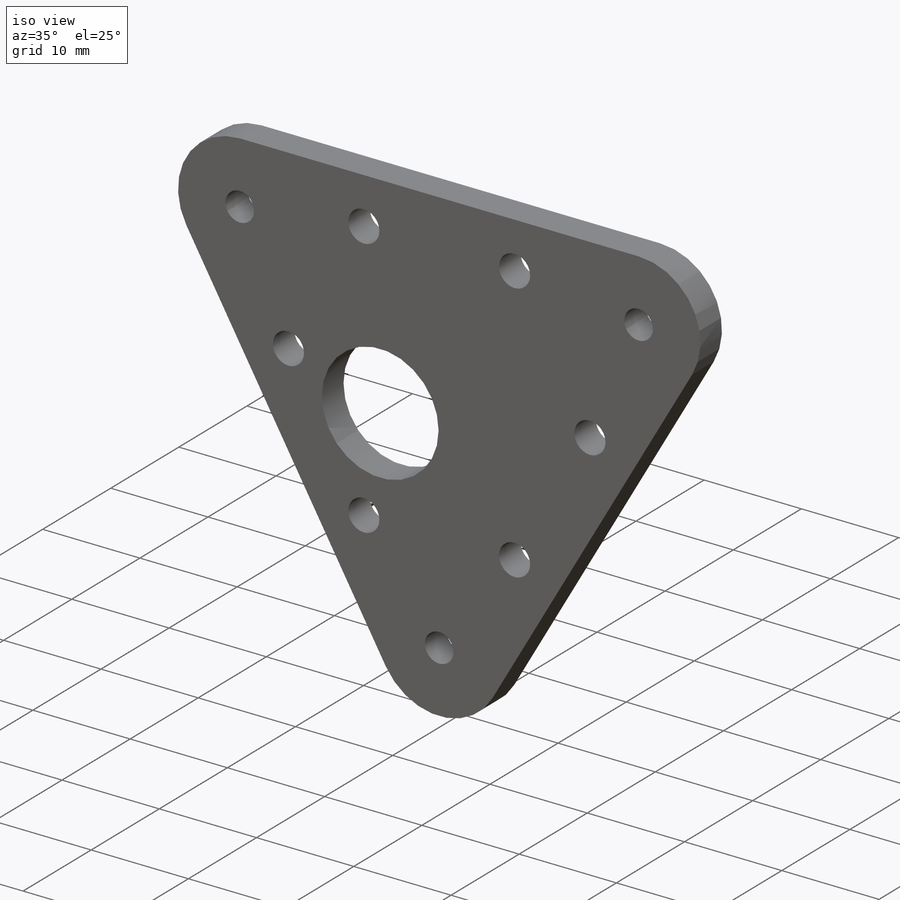
[diagram: iso view]
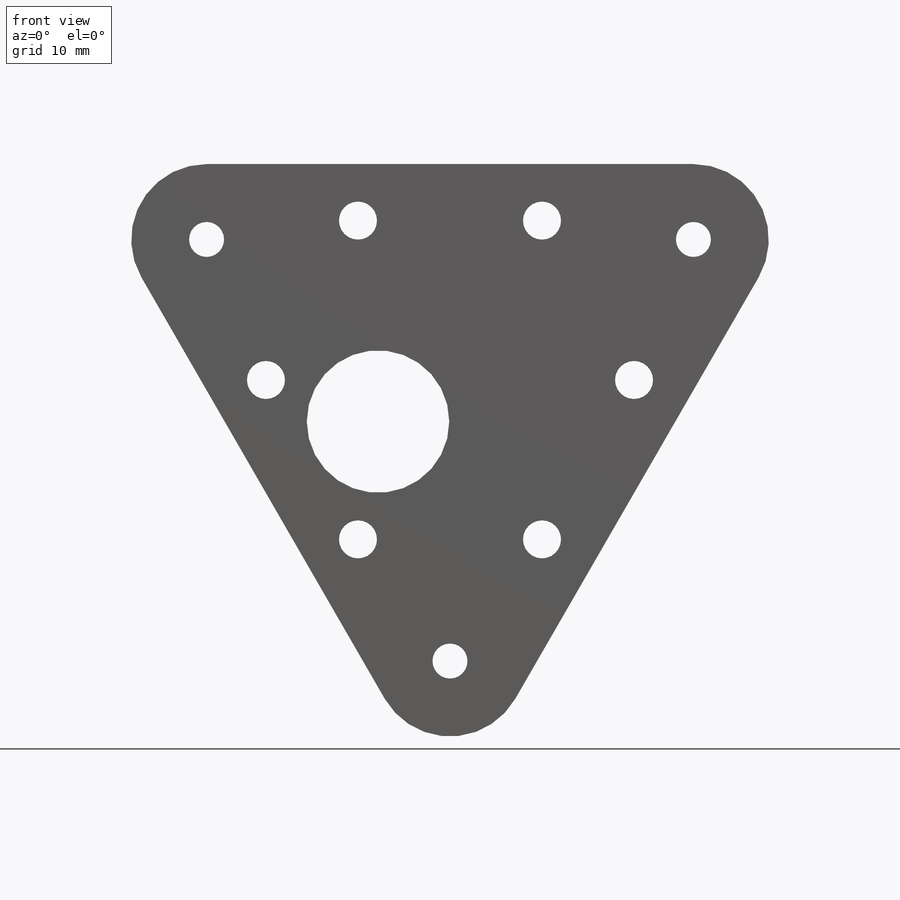
[diagram: front view]
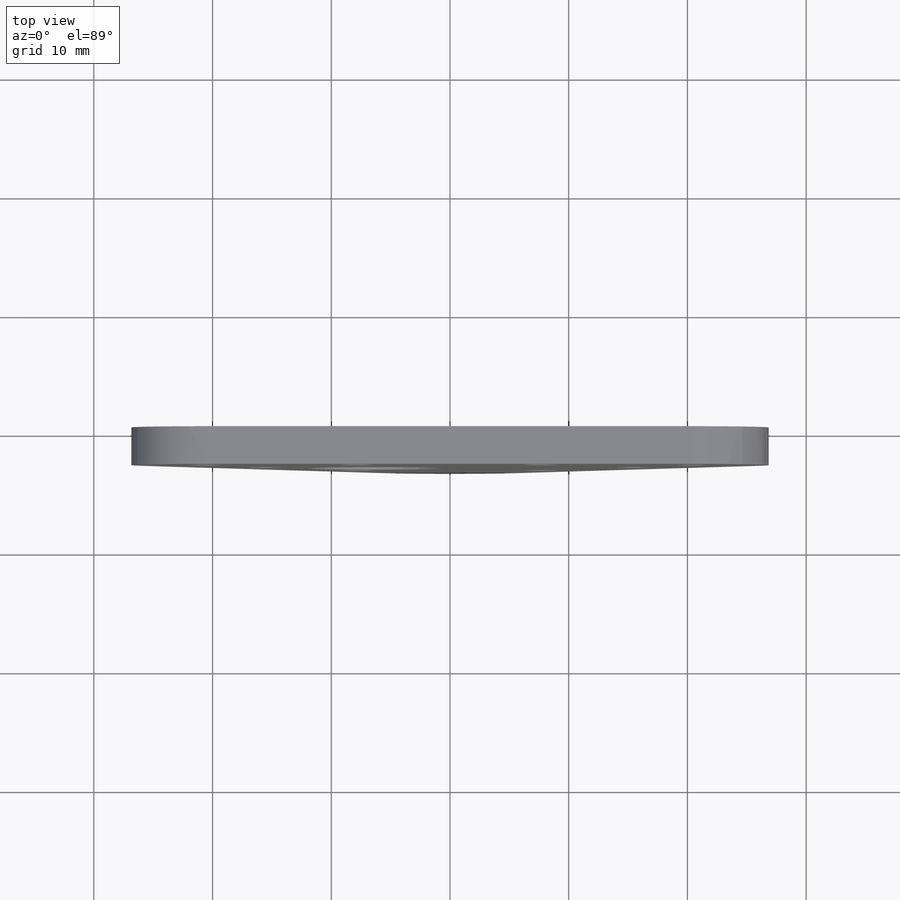
[diagram: top view]
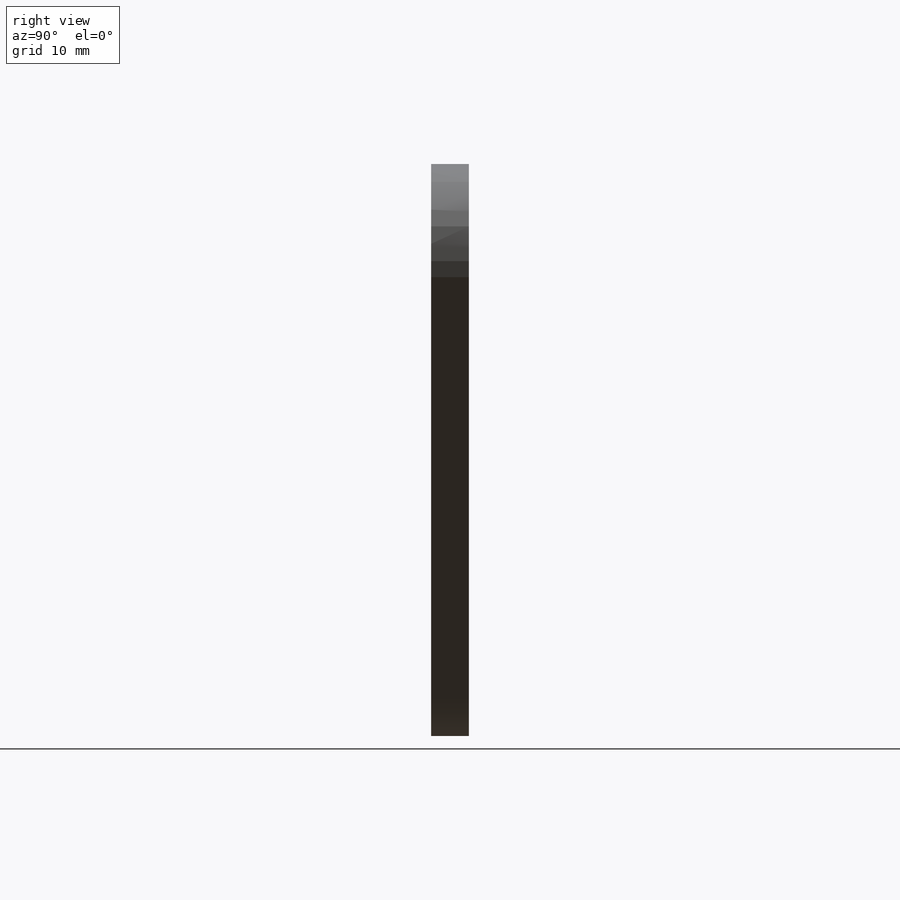
[diagram: right view]
SOLIDWORKS PART (.sldprt)
format: sldprt  version: not decoded by parser v0  size: 260,608 bytes
history: native  units: mm
features: sketch x5, hole x2, material x1, extrude x1, fillet x1 (+12 scaffold rows collapsed)
feature tree (22):
  scaffold x12  (default folders/planes/origin — collapsed)
  material  "Acrylic (Medium-high impact)"
  sketch  "Sketch1"  dims[c1.D5=12.0mm c1.D1=15.5mm c1.D2=38.1mm c1.D3=38.1mm c1.D4=7.0mm c2.D2=7.0mm c3.D2=~29.683002deg c4.D2=~10.217734mm c5.D2=30.0deg c5.D3=4.7625mm c5.D6=4.7625mm c5.D7=4.7625mm c6.D3=4.7625mm c6.D6=4.7625mm c6.D7=4.7625mm c6.D2=~163.770982deg]
  extrude  "Boss-Extrude1"  Depth=3.175mm
  hole  "M3 Clearance Hole1"  Diameter=3.2mm Depth=3.175mm
  sketch  "Sketch3"
  sketch  "Sketch2"  dims[hole-wizard template sketch: 60 standard entries collapsed; hole parameters kept: c18.Thru Hole Depth=3.175mm]
  fillet  "Fillet1"  Radius=6.35mm
  hole  "#4 Clearance Hole1"  Diameter=2.9464mm Depth=3.302mm
  sketch  "Sketch7"  dims[D1=31.75mm D2=31.75mm]
  sketch  "Sketch6"  dims[hole-wizard template sketch: 50 standard entries collapsed; hole parameters above]
decode coverage: 8 of 9 modeling features carry decoded parameters
note: ~ marks probable driven/reference dimensions
note: suppression state not decoded; provenance and decode notes live in map.json
